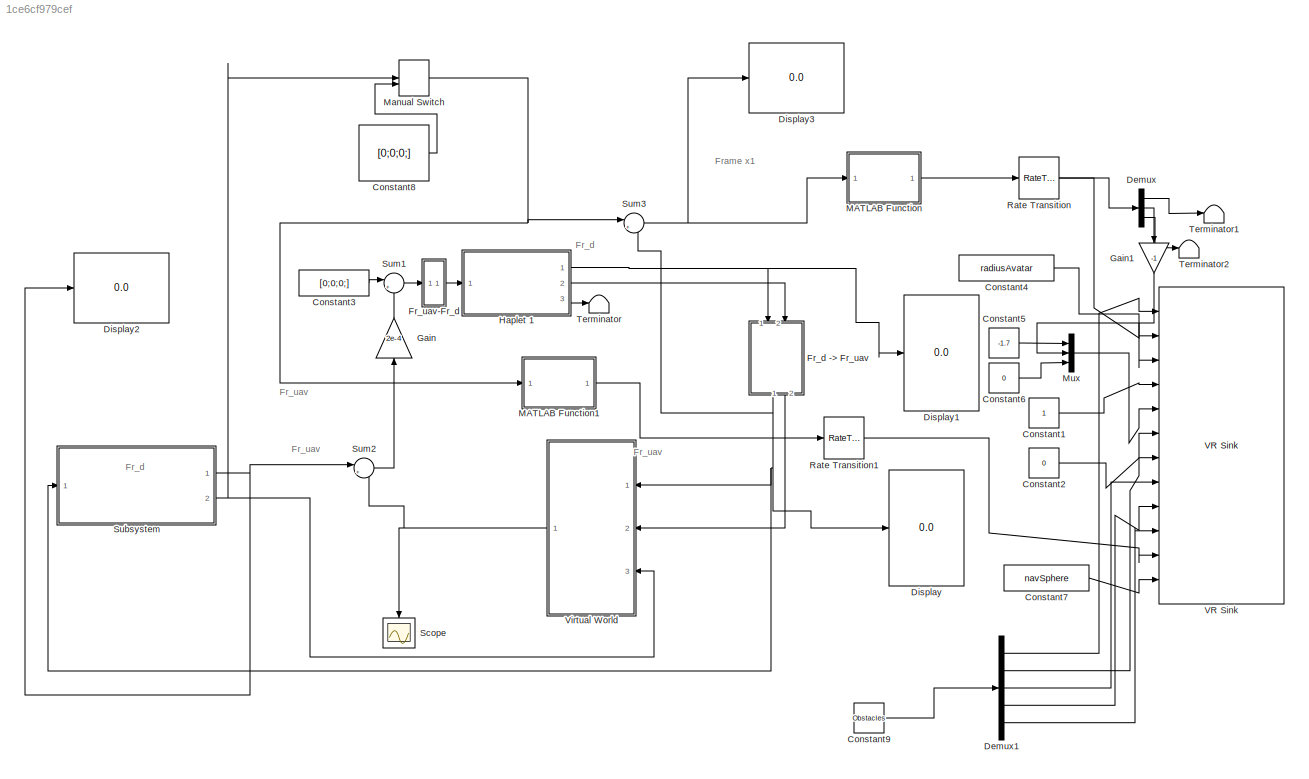
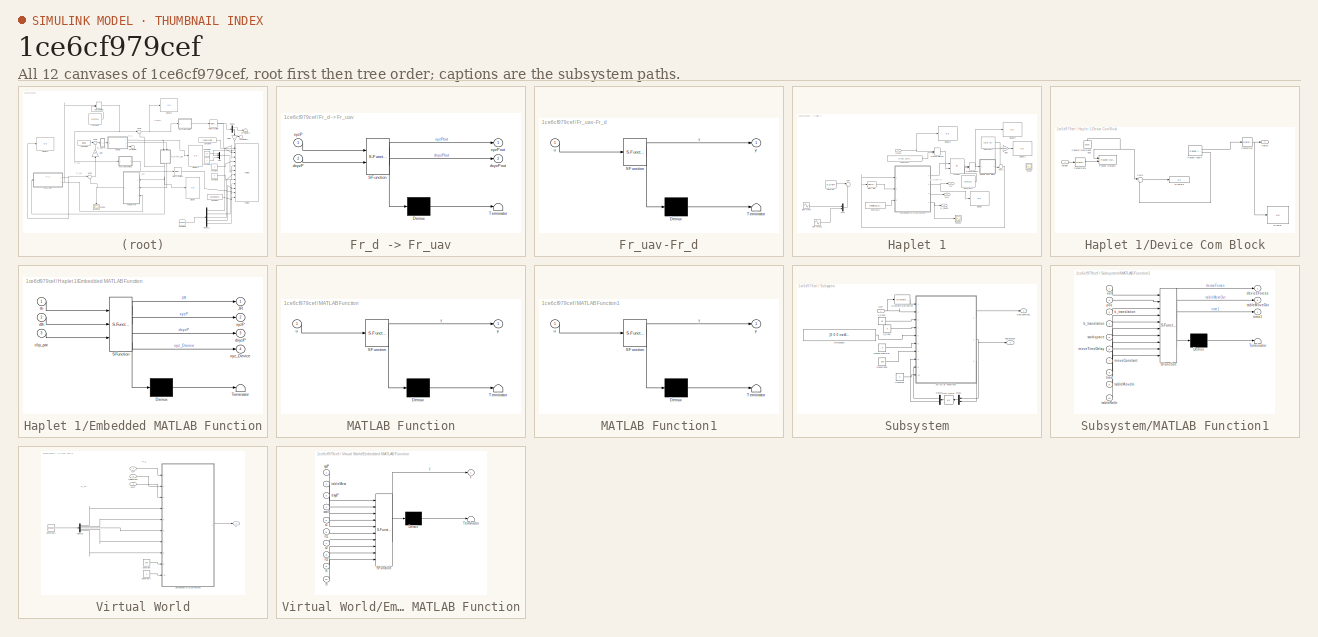
[diagram: thumbnail index - all 12 canvases of the model, root first then tree order]
MODEL slx_1ce6cf979cef
KIND model
CONFIG InitFcn = DroneSimulation;
BLOCK [Constant] Constant1
  OutDataTypeStr = double
BLOCK [Constant] Constant2
  OutDataTypeStr = double
  Value = 0
BLOCK [Constant] Constant3
  OutDataTypeStr = double
  Value = [0;0;0;]
BLOCK [Constant] Constant4
  OutDataTypeStr = double
  Value = radiusAvatar
BLOCK [Constant] Constant5
  OutDataTypeStr = double
  Value = -1.7
BLOCK [Constant] Constant6
  OutDataTypeStr = double
  Value = 0
BLOCK [Constant] Constant7
  OutDataTypeStr = double
  SampleTime = -1
  Value = navSphere
BLOCK [Constant] Constant8
  Value = [0;0;0;]
BLOCK [Constant] Constant9
  Value = Obstacles
BLOCK [Demux] Demux
  DisplayOption = bar
  Outputs = 3
  Ports = [1, 3]
BLOCK [Demux] Demux1
  DisplayOption = bar
  Outputs = [3 3 1 3 1]
  Ports = [1, 5]
BLOCK [Display] Display
  Decimation = 1
  Ports = [1]
BLOCK [Display] Display1
  Decimation = 1
  Ports = [1]
BLOCK [Display] Display2
  Decimation = 1
  Ports = [1]
BLOCK [Display] Display3
  Decimation = 1
  Ports = [1]
BLOCK [SubSystem] Fr_d -> Fr_uav
  ErrorFcn = Stateflow.Translate.translate
  PermitHierarchicalResolution = ExplicitOnly
  Ports = [2, 2]
  RequestExecContextInheritance = off
  SFBlockType = MATLAB Function
  TreatAsAtomicUnit = on
BLOCK [Demux] Fr_d -> Fr_uav/ Demux 
  Outputs = 1
  Ports = [1, 1]
BLOCK [S-Function] Fr_d -> Fr_uav/ SFunction 
  EnableBusSupport = on
  FunctionName = sf_sfun
  Parameters = Cuav_d,originOffset
  PortCounts = [2 3]
  Ports = [2, 3]
  Tag = Stateflow S-Function quadRotorSim 4
BLOCK [Terminator] Fr_d -> Fr_uav/ Terminator 
BLOCK [Inport] Fr_d -> Fr_uav/dxyzP
  IconDisplay = Port number
  Port = 2
BLOCK [Outport] Fr_d -> Fr_uav/dxyzPout
  IconDisplay = Port number
  Port = 2
BLOCK [Inport] Fr_d -> Fr_uav/xyzP
  IconDisplay = Port number
BLOCK [Outport] Fr_d -> Fr_uav/xyzPout
  IconDisplay = Port number
BLOCK [SubSystem] Fr_uav-Fr_d
  ErrorFcn = Stateflow.Translate.translate
  PermitHierarchicalResolution = ExplicitOnly
  Ports = [1, 1]
  RequestExecContextInheritance = off
  SFBlockType = MATLAB Function
  TreatAsAtomicUnit = on
BLOCK [Demux] Fr_uav-Fr_d/ Demux 
  Outputs = 1
  Ports = [1, 1]
BLOCK [S-Function] Fr_uav-Fr_d/ SFunction 
  EnableBusSupport = on
  FunctionName = sf_sfun
  Parameters = Cuav_d
  PortCounts = [1 2]
  Ports = [1, 2]
  Tag = Stateflow S-Function quadRotorSim 5
BLOCK [Terminator] Fr_uav-Fr_d/ Terminator 
BLOCK [Inport] Fr_uav-Fr_d/u
  IconDisplay = Port number
BLOCK [Outport] Fr_uav-Fr_d/y
  IconDisplay = Port number
BLOCK [Gain] Gain
  Gain = 2e-4
  OutDataTypeStr = Inherit: Inherit via internal rule
  ParamDataTypeStr = Inherit: Inherit via internal rule
  SaturateOnIntegerOverflow = off
BLOCK [Gain] Gain1
  Gain = -1
  OutDataTypeStr = Inherit: Inherit via internal rule
  ParamDataTypeStr = Inherit: Inherit via internal rule
  SaturateOnIntegerOverflow = off
BLOCK [SubSystem] Haplet 1
  Ports = [1, 3]
  RequestExecContextInheritance = off
BLOCK [Constant] Haplet 1/Constant
  Commented = on
  Value = [3;1]*pi/4
BLOCK [Constant] Haplet 1/Constant1
  Value = [angle_d1;orgn_d1]
BLOCK [Constant] Haplet 1/Constant2
  Commented = on
  Value = [0;0; 0;]
BLOCK [Constant] Haplet 1/Constant3
  Value = [0;0;0;]
BLOCK [Constant] Haplet 1/Constant4
  Value = [0.00;.00;0.01;]
BLOCK [SubSystem] Haplet 1/Device Com Block
  Ports = [1, 1]
  RequestExecContextInheritance = off
BLOCK [Outport] Haplet 1/Device Com Block/Angles
  IconDisplay = Port number
BLOCK [DataTypeConversion] Haplet 1/Device Com Block/Conversion
  OutDataTypeStr = double
  RndMeth = Floor
  SaturateOnIntegerOverflow = off
BLOCK [DataTypeConversion] Haplet 1/Device Com Block/Conversion1
  OutDataTypeStr = single
  RndMeth = Floor
  SaturateOnIntegerOverflow = off
BLOCK [Reference] Haplet 1/Device Com Block/Counter Free-Running3  REF=simulink/Sources/Counter
Free-Running
  NumBits = 32
  Ports = [0, 1]
  SourceBlock = simulink/Sources/Counter\nFree-Running
  SourceType = Counter Free-Running
  tsamp = t_haplet
BLOCK [Display] Haplet 1/Device Com Block/Display
  Decimation = 1
  Ports = [1]
BLOCK [Display] Haplet 1/Device Com Block/Display3
  Decimation = 1
  Ports = [1]
BLOCK [Reference] Haplet 1/Device Com Block/Packet Input4  REF=rtwinlib/Packet Input
  AttributesFormatString = Standard Devices\nSerial Port [16h]
  ByteOrder = 1
  DataTypes = { '3*single';'uint32'}
  DrvAddress = 22
  DrvName = Standard_Devices/Serial_Port
  DrvOptions = [115200 8 0 0 0 0 0 0]
  MaxMissedTicks = inf
  PacketID = 1
  PacketSize = 16
  Ports = [0, 2]
  SampleTime = t_haplet
  ShowError = off
  ShowMissedTicks = off
  ShowReady = off
  ShowTimestamp = off
  SourceBlock = rtwinlib/Packet Input
  SourceType = RTWin Packet Input
  YieldWhenWaiting = on
BLOCK [Reference] Haplet 1/Device Com Block/Packet Output5  REF=rtwinlib/Packet Output
  AttributesFormatString = Standard Devices\nSerial Port [16h]
  ByteOrder = 1
  DataTypes = {'uint32'; '3*single'}
  DrvAddress = 22
  DrvName = Standard_Devices/Serial_Port
  DrvOptions = [115200 8 0 0 0 0 0 0]
  FinalValue = []
  InitialValue = []
  MaxMissedTicks = inf
  PacketID = 1
  PacketSize = 16
  Ports = [2]
  SampleTime = t_haplet
  ShowError = off
  ShowMissedTicks = off
  ShowReady = off
  SourceBlock = rtwinlib/Packet Output
  SourceType = RTWin Packet Output
  YieldWhenWaiting = on
BLOCK [Sum] Haplet 1/Device Com Block/Sum1
  IconShape = round
  InputSameDT = off
  Inputs = |+-
  OutDataTypeStr = Inherit: Inherit via internal rule
  Ports = [2, 1]
  SaturateOnIntegerOverflow = off
BLOCK [Inport] Haplet 1/Device Com Block/Torque
  IconDisplay = Port number
BLOCK [Reference] Haplet 1/Discr Der  REF=simulink/Discrete/Discrete Derivative
  DoSatur = off
  ICPrevScaledInput = [0;0;0;]
  InputProcessing = Inherited
  LockScale = off
  OutDataType = fixdt(1, 16)
  OutDataTypeStr = Inherit: Inherit via internal rule
  OutMax = []
  OutMin = []
  OutScaling = 2^-10
  OutputDataTypeScalingMode = Inherit via internal rule
  Ports = [1, 1]
  RndMeth = Floor
  SourceBlock = simulink/Discrete/Discrete Derivative
  SourceType = Discrete Derivative
  gainval = 1.0
BLOCK [Display] Haplet 1/Display
  Commented = on
  Decimation = 1
  Ports = [1]
BLOCK [Display] Haplet 1/Display1
  Commented = on
  Decimation = 1
  Ports = [1]
BLOCK [Display] Haplet 1/Display2
  Decimation = 1
  Ports = [1]
BLOCK [Display] Haplet 1/Display3
  Decimation = 1
  Ports = [1]
BLOCK [SubSystem] Haplet 1/Embedded MATLAB Function
  ErrorFcn = Stateflow.Translate.translate
  PermitHierarchicalResolution = ExplicitOnly
  Ports = [3, 4]
  RequestExecContextInheritance = off
  SFBlockType = MATLAB Function
  TreatAsAtomicUnit = on
BLOCK [Demux] Haplet 1/Embedded MATLAB Function/ Demux 
  Outputs = 1
  Ports = [1, 1]
BLOCK [S-Function] Haplet 1/Embedded MATLAB Function/ SFunction 
  EnableBusSupport = on
  FunctionName = sf_sfun
  Parameters = L,d,d1,l
  PortCounts = [3 5]
  Ports = [3, 5]
  Tag = Stateflow S-Function quadRotorSim 10
BLOCK [Terminator] Haplet 1/Embedded MATLAB Function/ Terminator 
BLOCK [Outport] Haplet 1/Embedded MATLAB Function/JR
  IconDisplay = Port number
BLOCK [Inport] Haplet 1/Embedded MATLAB Function/clip_par
  IconDisplay = Port number
  Port = 3
BLOCK [Inport] Haplet 1/Embedded MATLAB Function/dth
  IconDisplay = Port number
  Port = 2
BLOCK [Outport] Haplet 1/Embedded MATLAB Function/dxyzP
  IconDisplay = Port number
  Port = 3
BLOCK [Inport] Haplet 1/Embedded MATLAB Function/th
  IconDisplay = Port number
BLOCK [Outport] Haplet 1/Embedded MATLAB Function/xyzP
  IconDisplay = Port number
  Port = 2
BLOCK [Outport] Haplet 1/Embedded MATLAB Function/xyz_Device
  IconDisplay = Port number
  Port = 4
BLOCK [Gain] Haplet 1/Gain
  Commented = on
  Gain = 180/3.14159
  OutDataTypeStr = Inherit: Inherit via internal rule
  ParamDataTypeStr = Inherit: Inherit via internal rule
  SaturateOnIntegerOverflow = off
BLOCK [ManualSwitch] Haplet 1/Manual Switch
BLOCK [ManualSwitch] Haplet 1/Manual Switch1
BLOCK [Mux] Haplet 1/Mux
  Commented = on
  DisplayOption = bar
  Inputs = 2
  Ports = [2, 1]
BLOCK [Product] Haplet 1/Product
  InputSameDT = off
  Multiplication = Matrix(*)
  OutDataTypeStr = Inherit: Inherit via internal rule
  Ports = [2, 1]
  RndMeth = Floor
  SaturateOnIntegerOverflow = off
BLOCK [Scope] Haplet 1/Scope
  Commented = on
  DataFormat = StructureWithTime
  Floating = off
  NumInputPorts = 1
  Ports = [1]
  SampleTime = 0
  SaveName = ScopeData1
  ShowLegends = off
BLOCK [Scope] Haplet 1/Scope1
  Commented = on
  DataFormat = StructureWithTime
  Floating = off
  NumInputPorts = 1
  Ports = [1]
  SampleTime = 0
  ShowLegends = off
  YMax = 8
BLOCK [Sin] Haplet 1/Sine Wave
  Amplitude = pi/4
  Commented = on
  Ports = [0, 1]
  SampleTime = 0.01
BLOCK [Sin] Haplet 1/Sine Wave1
  Amplitude = -pi/4
  Commented = on
  Phase = pi/6
  Ports = [0, 1]
  SampleTime = 0.01
BLOCK [Sum] Haplet 1/Sum
  Commented = on
  IconShape = round
  InputSameDT = off
  Inputs = |++
  OutDataTypeStr = Inherit: Inherit via internal rule
  Ports = [2, 1]
  SaturateOnIntegerOverflow = off
BLOCK [Sum] Haplet 1/Sum1
  IconShape = round
  InputSameDT = off
  Inputs = ++|
  OutDataTypeStr = Inherit: Inherit via internal rule
  Ports = [2, 1]
  SaturateOnIntegerOverflow = off
BLOCK [Outport] Haplet 1/dxyP
  IconDisplay = Port number
  Port = 2
BLOCK [Inport] Haplet 1/forces
  IconDisplay = Port number
BLOCK [Outport] Haplet 1/xyP
  IconDisplay = Port number
BLOCK [Outport] Haplet 1/xy_Device
  IconDisplay = Port number
  Port = 3
BLOCK [SubSystem] MATLAB Function
  ErrorFcn = Stateflow.Translate.translate
  PermitHierarchicalResolution = ExplicitOnly
  Ports = [1, 1]
  RequestExecContextInheritance = off
  SFBlockType = MATLAB Function
  TreatAsAtomicUnit = on
BLOCK [Demux] MATLAB Function/ Demux 
  Outputs = 1
  Ports = [1, 1]
BLOCK [S-Function] MATLAB Function/ SFunction 
  EnableBusSupport = on
  FunctionName = sf_sfun
  Parameters = Cvw_uav
  PortCounts = [1 2]
  Ports = [1, 2]
  Tag = Stateflow S-Function quadRotorSim 2
BLOCK [Terminator] MATLAB Function/ Terminator 
BLOCK [Inport] MATLAB Function/u
  IconDisplay = Port number
BLOCK [Outport] MATLAB Function/y
  IconDisplay = Port number
BLOCK [SubSystem] MATLAB Function1
  ErrorFcn = Stateflow.Translate.translate
  PermitHierarchicalResolution = ExplicitOnly
  Ports = [1, 1]
  RequestExecContextInheritance = off
  SFBlockType = MATLAB Function
  TreatAsAtomicUnit = on
BLOCK [Demux] MATLAB Function1/ Demux 
  Outputs = 1
  Ports = [1, 1]
BLOCK [S-Function] MATLAB Function1/ SFunction 
  EnableBusSupport = on
  FunctionName = sf_sfun
  Parameters = Cvw_uav
  PortCounts = [1 2]
  Ports = [1, 2]
  Tag = Stateflow S-Function quadRotorSim 6
BLOCK [Terminator] MATLAB Function1/ Terminator 
BLOCK [Inport] MATLAB Function1/u
  IconDisplay = Port number
BLOCK [Outport] MATLAB Function1/y
  IconDisplay = Port number
BLOCK [ManualSwitch] Manual Switch
BLOCK [Mux] Mux
  DisplayOption = bar
  Inputs = 3
  Ports = [3, 1]
BLOCK [RateTransition] Rate Transition
  OutPortSampleTime = .02
BLOCK [RateTransition] Rate Transition1
  OutPortSampleTime = .02
BLOCK [Scope] Scope
  DataFormat = StructureWithTime
  Floating = off
  NumInputPorts = 1
  Ports = [1]
  SampleTime = 0
  SaveName = ScopeData2
  ShowLegends = off
  YMax = 1750
  YMin = -3250
BLOCK [SubSystem] Subsystem
  Ports = [1, 2]
  RequestExecContextInheritance = off
BLOCK [Constant] Subsystem/Constant
  Value = 0
BLOCK [Demux] Subsystem/Demux
  DisplayOption = bar
  Outputs = [3  1]
  Ports = [1, 2]
BLOCK [Outport] Subsystem/DeviceForces
  IconDisplay = Port number
BLOCK [Reference] Subsystem/Discrete Derivative  REF=simulink/Discrete/Discrete Derivative
  DoSatur = off
  ICPrevScaledInput = 0.0
  InputProcessing = Inherited
  LockScale = off
  OutDataType = fixdt(1, 16)
  OutDataTypeStr = Inherit: Inherit via internal rule
  OutMax = []
  OutMin = []
  OutScaling = 2^-10
  OutputDataTypeScalingMode = Inherit via internal rule
  Ports = [1, 1]
  RndMeth = Floor
  SourceBlock = simulink/Discrete/Discrete Derivative
  SourceType = Discrete Derivative
  gainval = 1.0
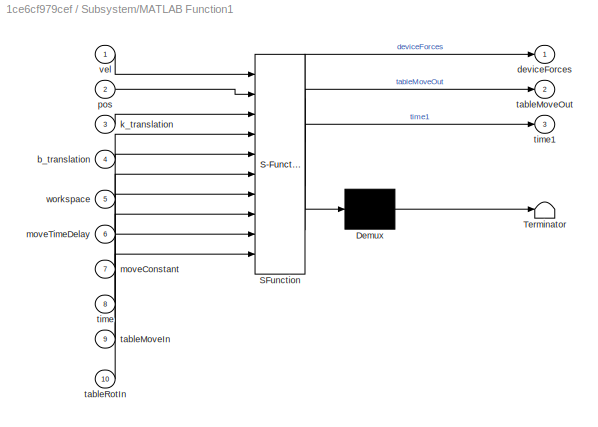
BLOCK [SubSystem] Subsystem/MATLAB Function1
  ErrorFcn = Stateflow.Translate.translate
  PermitHierarchicalResolution = ExplicitOnly
  Ports = [10, 3]
  RequestExecContextInheritance = off
  SFBlockType = MATLAB Function
  TreatAsAtomicUnit = on
BLOCK [Demux] Subsystem/MATLAB Function1/ Demux 
  Outputs = 1
  Ports = [1, 1]
BLOCK [S-Function] Subsystem/MATLAB Function1/ SFunction 
  EnableBusSupport = on
  FunctionName = sf_sfun
  Parameters = dt
  PortCounts = [10 4]
  Ports = [10, 4]
  Tag = Stateflow S-Function quadRotorSim 1
BLOCK [Terminator] Subsystem/MATLAB Function1/ Terminator 
BLOCK [Inport] Subsystem/MATLAB Function1/b_translation
  IconDisplay = Port number
  Port = 4
BLOCK [Outport] Subsystem/MATLAB Function1/deviceForces
  IconDisplay = Port number
BLOCK [Inport] Subsystem/MATLAB Function1/k_translation
  IconDisplay = Port number
  Port = 3
BLOCK [Inport] Subsystem/MATLAB Function1/moveConstant
  IconDisplay = Port number
  Port = 7
BLOCK [Inport] Subsystem/MATLAB Function1/moveTimeDelay
  IconDisplay = Port number
  Port = 6
BLOCK [Inport] Subsystem/MATLAB Function1/pos
  IconDisplay = Port number
  Port = 2
BLOCK [Inport] Subsystem/MATLAB Function1/tableMoveIn
  IconDisplay = Port number
  Port = 9
BLOCK [Outport] Subsystem/MATLAB Function1/tableMoveOut
  IconDisplay = Port number
  Port = 2
BLOCK [Inport] Subsystem/MATLAB Function1/tableRotIn
  IconDisplay = Port number
  Port = 10
BLOCK [Inport] Subsystem/MATLAB Function1/time
  IconDisplay = Port number
  Port = 8
BLOCK [Outport] Subsystem/MATLAB Function1/time1
  IconDisplay = Port number
  Port = 3
BLOCK [Inport] Subsystem/MATLAB Function1/vel
  IconDisplay = Port number
BLOCK [Inport] Subsystem/MATLAB Function1/workspace
  IconDisplay = Port number
  Port = 5
BLOCK [Mux] Subsystem/Mux1
  DisplayOption = bar
  Inputs = [3 1 ]
  Ports = [2, 1]
BLOCK [Outport] Subsystem/TableMove
  IconDisplay = Port number
  Port = 2
BLOCK [UnitDelay] Subsystem/Unit Delay
  InitialCondition = [0 0 0 0]
  InputProcessing = Elements as channels (sample based)
  SampleTime = -1
BLOCK [Constant] Subsystem/b_trans
  Value = 0
BLOCK [Constant] Subsystem/k_trans
  Value = 20
BLOCK [Constant] Subsystem/moveConst
  Value = .005
BLOCK [Constant] Subsystem/moveTimeDelay
  Value = .5
BLOCK [Constant] Subsystem/workspace
  Value = [0 0 0 navSphere]'
BLOCK [Inport] Subsystem/xyzP
  IconDisplay = Port number
  Interpolate = off
  PortDimensions = [1 3]
  SampleTime = dt
BLOCK [Sum] Sum1
  IconShape = round
  InputSameDT = off
  Inputs = |+-
  OutDataTypeStr = Inherit: Inherit via internal rule
  Ports = [2, 1]
  SaturateOnIntegerOverflow = off
BLOCK [Sum] Sum2
  IconShape = round
  InputSameDT = off
  Inputs = |++
  OutDataTypeStr = Inherit: Inherit via internal rule
  Ports = [2, 1]
  SaturateOnIntegerOverflow = off
BLOCK [Sum] Sum3
  IconShape = round
  InputSameDT = off
  Inputs = |++
  OutDataTypeStr = Inherit: Inherit via internal rule
  Ports = [2, 1]
  SaturateOnIntegerOverflow = off
BLOCK [Terminator] Terminator
BLOCK [Terminator] Terminator1
BLOCK [Terminator] Terminator2
BLOCK [Reference] VR Sink  REF=vrlib/VR Sink
  AllowVariableSize = off
  AutoView = off
  FieldsWritten = Wall.translation.3.1.1.double#Drone.translation.3.1.1.double#NavSphereRad.radius.1.1.1.double#DroneView.set_bind.1.1.1.logical#Shadow.translation.3.1.1.double#TopView.set_bind.1.1.1.logical#Cylinder1.translation.3.1.1.double#Obj_1_Cyl.radius.1.1.1.double#Cylinder2.translation.3.1.1.double#Obj_2_Cyl.radius.1.1.1.double#BigSphereTransform.translation.3.1.1.double#BigSphereRad.radius.1.1.1.double
  FigureProperties = {'Position', 'Name', 'Viewpoint', 'CameraBound', 'CameraDirection', 'CameraPosition', 'CameraUpVector', 'ZoomFactor', 'Antialiasing', 'Headlight', 'Lighting', 'NavPanel', 'StatusBar', 'ToolBar', 'Textures', 'Transparency', 'Triad', 'Wireframe', 'NavZones', 'NavMode', 'NavSpeed', 'CaptureFileFormat', 'CaptureFileName', 'Record2DCompressMethod', 'Record2DCompressQuality', 'Record2D', 'Record2DFileNa...<+583ch>
  InstantiateOnLoad = on
  Ports = [12]
  RemoteChange = off
  RemoteView = off
  SampleTime = -1
  SourceBlock = vrlib/VR Sink
  SourceType = Virtual Reality Sink
  VideoDimensions = []
  ViewEnable = on
  WorldFileName = QuadWorld.wrl
BLOCK [SubSystem] Virtual World
  Ports = [3, 1]
  RequestExecContextInheritance = off
BLOCK [Constant] Virtual World/Constant
  Value = 200
BLOCK [Constant] Virtual World/Constant1
  Value = .1
BLOCK [Constant] Virtual World/Constant2
  Value = Obstacles
BLOCK [Demux] Virtual World/Demux
  DisplayOption = bar
  Outputs = [3 3 1 3 1]
  Ports = [1, 5]
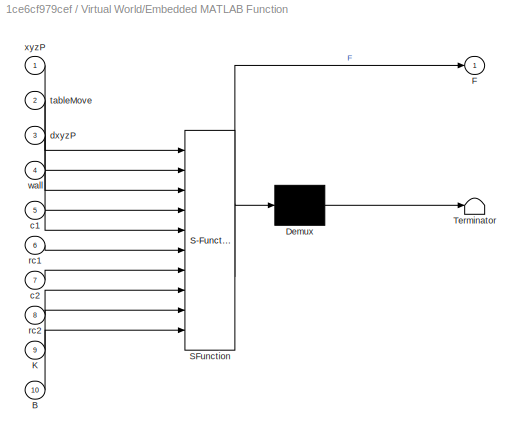
BLOCK [SubSystem] Virtual World/Embedded MATLAB Function
  ErrorFcn = Stateflow.Translate.translate
  PermitHierarchicalResolution = ExplicitOnly
  Ports = [10, 1]
  RequestExecContextInheritance = off
  SFBlockType = MATLAB Function
  TreatAsAtomicUnit = on
BLOCK [Demux] Virtual World/Embedded MATLAB Function/ Demux 
  Outputs = 1
  Ports = [1, 1]
BLOCK [S-Function] Virtual World/Embedded MATLAB Function/ SFunction 
  EnableBusSupport = on
  FunctionName = sf_sfun
  Parameters = Cvw_uav,radiusAvatar
  PortCounts = [10 2]
  Ports = [10, 2]
  Tag = Stateflow S-Function quadRotorSim 3
BLOCK [Terminator] Virtual World/Embedded MATLAB Function/ Terminator 
BLOCK [Inport] Virtual World/Embedded MATLAB Function/B
  IconDisplay = Port number
  Port = 10
BLOCK [Outport] Virtual World/Embedded MATLAB Function/F
  IconDisplay = Port number
BLOCK [Inport] Virtual World/Embedded MATLAB Function/K
  IconDisplay = Port number
  Port = 9
BLOCK [Inport] Virtual World/Embedded MATLAB Function/c1
  IconDisplay = Port number
  Port = 5
BLOCK [Inport] Virtual World/Embedded MATLAB Function/c2
  IconDisplay = Port number
  Port = 7
BLOCK [Inport] Virtual World/Embedded MATLAB Function/dxyzP
  IconDisplay = Port number
  Port = 3
BLOCK [Inport] Virtual World/Embedded MATLAB Function/rc1
  IconDisplay = Port number
  Port = 6
BLOCK [Inport] Virtual World/Embedded MATLAB Function/rc2
  IconDisplay = Port number
  Port = 8
BLOCK [Inport] Virtual World/Embedded MATLAB Function/tableMove
  IconDisplay = Port number
  Port = 2
BLOCK [Inport] Virtual World/Embedded MATLAB Function/wall
  IconDisplay = Port number
  Port = 4
BLOCK [Inport] Virtual World/Embedded MATLAB Function/xyzP
  IconDisplay = Port number
BLOCK [Outport] Virtual World/F
  IconDisplay = Port number
BLOCK [Inport] Virtual World/dxyP
  IconDisplay = Port number
  Port = 2
BLOCK [Inport] Virtual World/tableMove
  IconDisplay = Port number
  Port = 3
BLOCK [Inport] Virtual World/xyP
  IconDisplay = Port number
ANNOTATION (root): Fr_d
ANNOTATION (root): Fr_uav
ANNOTATION (root): Frame x1
ANNOTATION Haplet 1: In frame x1
ANNOTATION Virtual World: Fr_d
ANNOTATION Virtual World: Fr_vw
LINE Constant1:1 -> VR Sink:4
LINE Constant2:1 -> VR Sink:6
LINE Constant3:1 -> Sum1:1
LINE Constant4:1 -> VR Sink:3
LINE Constant5:1 -> Mux:1
LINE Constant6:1 -> Mux:3
LINE Constant7:1 -> VR Sink:12
LINE Constant8:1 -> Manual Switch:2
LINE Constant9:1 -> Demux1:1
LINE Demux1:1 -> VR Sink:1
LINE Demux1:2 -> VR Sink:7
LINE Demux1:3 -> VR Sink:8
LINE Demux1:4 -> VR Sink:9
LINE Demux1:5 -> VR Sink:10
LINE Demux:1 -> Terminator1:1
LINE Demux:2 -> Gain1:1
LINE Demux:3 -> Terminator2:1
NET Fr_d -> Fr_uav:1 -> Display:1, Subsystem:1, Sum3:2, Virtual World:1
LINE Fr_d -> Fr_uav:2 -> Virtual World:2
LINE Fr_uav-Fr_d:1 -> Haplet 1:1
LINE Gain1:1 -> Mux:2
LINE Gain:1 -> Sum1:2
LINE Haplet 1/Constant1:1 -> Haplet 1/Embedded MATLAB Function:3
LINE Haplet 1/Constant2:1 -> Haplet 1/Sum1:1
LINE Haplet 1/Constant3:1 -> Haplet 1/Manual Switch:2
LINE Haplet 1/Constant4:1 -> Haplet 1/Manual Switch1:2
LINE Haplet 1/Constant:1 -> Haplet 1/Sum:1
LINE Haplet 1/Device Com Block/Conversion1:1 -> Haplet 1/Device Com Block/Packet Output5:2
NET Haplet 1/Device Com Block/Conversion:1 -> Haplet 1/Device Com Block/Angles:1, Haplet 1/Device Com Block/Display:1
NET Haplet 1/Device Com Block/Counter Free-Running3:1 -> Haplet 1/Device Com Block/Packet Output5:1, Haplet 1/Device Com Block/Sum1:1
LINE Haplet 1/Device Com Block/Packet Input4:1 -> Haplet 1/Device Com Block/Conversion:1
LINE Haplet 1/Device Com Block/Packet Input4:2 -> Haplet 1/Device Com Block/Sum1:2
LINE Haplet 1/Device Com Block/Sum1:1 -> Haplet 1/Device Com Block/Display3:1
LINE Haplet 1/Device Com Block/Torque:1 -> Haplet 1/Device Com Block/Conversion1:1
NET Haplet 1/Device Com Block:1 -> Haplet 1/Gain:1, Haplet 1/Sum1:2
LINE Haplet 1/Discr Der:1 -> Haplet 1/Embedded MATLAB Function:2
LINE Haplet 1/Embedded MATLAB Function:1 -> Haplet 1/Product:1
NET Haplet 1/Embedded MATLAB Function:2 -> Haplet 1/Display:1, Haplet 1/xyP:1
LINE Haplet 1/Embedded MATLAB Function:3 -> Haplet 1/dxyP:1
NET Haplet 1/Embedded MATLAB Function:4 -> Haplet 1/Scope1:1, Haplet 1/xy_Device:1
LINE Haplet 1/Gain:1 -> Haplet 1/Display1:1
LINE Haplet 1/Manual Switch1:1 -> Haplet 1/Product:2
NET Haplet 1/Manual Switch:1 -> Haplet 1/Device Com Block:1, Haplet 1/Display3:1
LINE Haplet 1/Mux:1 -> Haplet 1/Sum:2
LINE Haplet 1/Product:1 -> Haplet 1/Manual Switch:1
LINE Haplet 1/Sine Wave1:1 -> Haplet 1/Mux:2
LINE Haplet 1/Sine Wave:1 -> Haplet 1/Mux:1
NET Haplet 1/Sum1:1 -> Haplet 1/Discr Der:1, Haplet 1/Embedded MATLAB Function:1
NET Haplet 1/forces:1 -> Haplet 1/Display2:1, Haplet 1/Manual Switch1:1
NET Haplet 1:1 -> Display1:1, Fr_d -> Fr_uav:1
LINE Haplet 1:2 -> Fr_d -> Fr_uav:2
LINE Haplet 1:3 -> Terminator:1
LINE MATLAB Function1:1 -> Rate Transition1:1
LINE MATLAB Function:1 -> Rate Transition:1
NET Manual Switch:1 -> MATLAB Function1:1, Sum3:1
LINE Mux:1 -> VR Sink:5
LINE Rate Transition1:1 -> VR Sink:11
NET Rate Transition:1 -> Demux:1, VR Sink:2
LINE Subsystem/Constant:1 -> Subsystem/MATLAB Function1:10
LINE Subsystem/Demux:1 -> Subsystem/MATLAB Function1:9
LINE Subsystem/Demux:2 -> Subsystem/MATLAB Function1:8
LINE Subsystem/Discrete Derivative:1 -> Subsystem/MATLAB Function1:1
LINE Subsystem/MATLAB Function1:1 -> Subsystem/DeviceForces:1
NET Subsystem/MATLAB Function1:2 -> Subsystem/Mux1:1, Subsystem/TableMove:1
LINE Subsystem/MATLAB Function1:3 -> Subsystem/Mux1:2
LINE Subsystem/Mux1:1 -> Subsystem/Unit Delay:1
LINE Subsystem/Unit Delay:1 -> Subsystem/Demux:1
LINE Subsystem/b_trans:1 -> Subsystem/MATLAB Function1:4
LINE Subsystem/k_trans:1 -> Subsystem/MATLAB Function1:3
LINE Subsystem/moveConst:1 -> Subsystem/MATLAB Function1:7
LINE Subsystem/moveTimeDelay:1 -> Subsystem/MATLAB Function1:6
LINE Subsystem/workspace:1 -> Subsystem/MATLAB Function1:5
NET Subsystem/xyzP:1 -> Subsystem/Discrete Derivative:1, Subsystem/MATLAB Function1:2
NET Subsystem:1 -> Display2:1, Sum2:1
NET Subsystem:2 -> Manual Switch:1, Virtual World:3
LINE Sum1:1 -> Fr_uav-Fr_d:1
LINE Sum2:1 -> Gain:1
NET Sum3:1 -> Display3:1, MATLAB Function:1
LINE Virtual World/Constant1:1 -> Virtual World/Embedded MATLAB Function:10
LINE Virtual World/Constant2:1 -> Virtual World/Demux:1
LINE Virtual World/Constant:1 -> Virtual World/Embedded MATLAB Function:9
LINE Virtual World/Demux:1 -> Virtual World/Embedded MATLAB Function:4
LINE Virtual World/Demux:2 -> Virtual World/Embedded MATLAB Function:5
LINE Virtual World/Demux:3 -> Virtual World/Embedded MATLAB Function:6
LINE Virtual World/Demux:4 -> Virtual World/Embedded MATLAB Function:7
LINE Virtual World/Demux:5 -> Virtual World/Embedded MATLAB Function:8
LINE Virtual World/Embedded MATLAB Function:1 -> Virtual World/F:1
LINE Virtual World/dxyP:1 -> Virtual World/Embedded MATLAB Function:3
LINE Virtual World/tableMove:1 -> Virtual World/Embedded MATLAB Function:2
LINE Virtual World/xyP:1 -> Virtual World/Embedded MATLAB Function:1
NET Virtual World:1 -> Scope:1, Sum2:2
note: NET lines group one-source signal fan-out (src -> all destinations, sorted); 1:1 wires keep LINE
